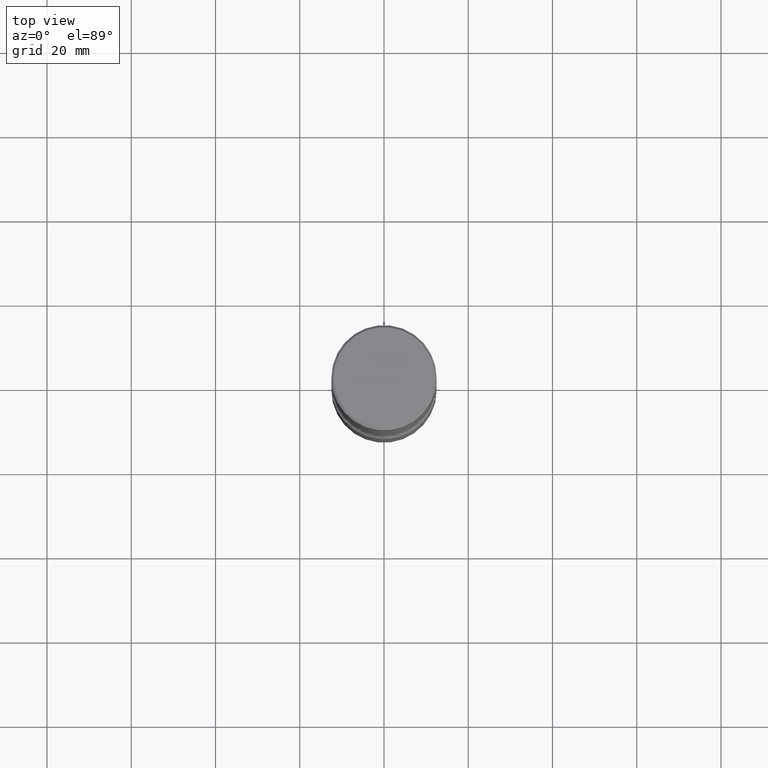
[diagram: clean part render]
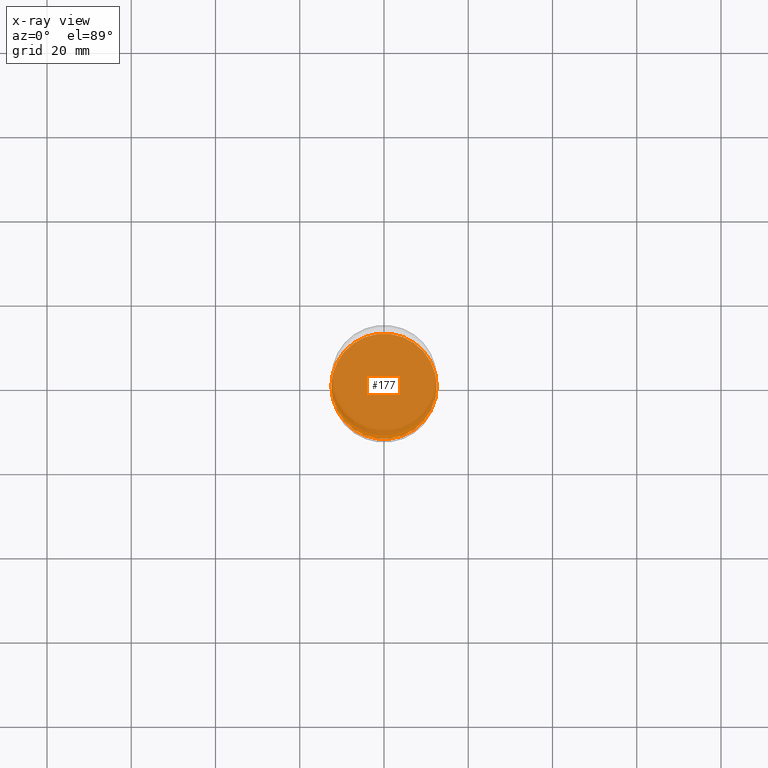
[diagram: x-ray — body ghosted, one internal face saturated and labeled with its STEP entity id]
A machine part, top view, then the same camera in x-ray: the body is ghosted and one INTERNAL B-rep face — a face not visible from any outside direction — is saturated and labeled: STEP entity #177.
In plain terms, the highlighted planar face has unit normal (0, -0, -1).
Its self-contained STEP definition (entity closure, byte-faithful):
#50 = DIRECTION ( 'NONE',  ( 2.438088387897960049E-29, -3.491481338843145188E-15, -1.000000000000000000 ) ) ;
#91 = DIRECTION ( 'NONE',  ( 1.000000000000000000, -6.982962677686270655E-15, 0.000000000000000000 ) ) ;
#161 = CARTESIAN_POINT ( 'NONE',  ( -0.4921500000000002539, -1.605675601601381657E-14, -4.606299999999999173 ) ) ;
#164 = DIRECTION ( 'NONE',  ( 1.000000000000000000, -6.982962677686270655E-15, 0.000000000000000000 ) ) ;
#177 = ADVANCED_FACE ( 'NONE', ( #191 ), #406, .F. ) ;
#187 = AXIS2_PLACEMENT_3D ( 'NONE', #445, #50, #360 ) ;
#191 = FACE_OUTER_BOUND ( 'NONE', #380, .T. ) ;
#202 = EDGE_CURVE ( 'NONE', #269, #552, #415, .T. ) ;
#240 = ORIENTED_EDGE ( 'NONE', *, *, #320, .T. ) ;
#269 = VERTEX_POINT ( 'NONE', #437 ) ;
#275 = CIRCLE ( 'NONE', #345, 0.4921500000000002539 ) ;
#303 = CARTESIAN_POINT ( 'NONE',  ( 1.126456296193059450E-28, -1.608281049111318039E-14, -4.606299999999999173 ) ) ;
#319 = CARTESIAN_POINT ( 'NONE',  ( 1.126456296193059450E-28, -1.608281049111318039E-14, -4.606299999999999173 ) ) ;
#320 = EDGE_CURVE ( 'NONE', #552, #269, #275, .T. ) ;
#345 = AXIS2_PLACEMENT_3D ( 'NONE', #319, #460, #164 ) ;
#360 = DIRECTION ( 'NONE',  ( -1.000000000000000000, 6.982962677686265922E-15, -4.876176775795935793E-29 ) ) ;
#380 = EDGE_LOOP ( 'NONE', ( #479, #240 ) ) ;
#406 = PLANE ( 'NONE',  #187 ) ;
#415 = CIRCLE ( 'NONE', #537, 0.4921500000000002539 ) ;
#437 = CARTESIAN_POINT ( 'NONE',  ( 0.4921500000000002539, -1.951947557293647774E-14, -4.606299999999999173 ) ) ;
#445 = CARTESIAN_POINT ( 'NONE',  ( 1.126456296193059450E-28, -1.608281049111318039E-14, -4.606299999999999173 ) ) ;
#460 = DIRECTION ( 'NONE',  ( -2.445468806185136597E-29, 3.491481338843145583E-15, 1.000000000000000000 ) ) ;
#479 = ORIENTED_EDGE ( 'NONE', *, *, #202, .T. ) ;
#480 = DIRECTION ( 'NONE',  ( -2.445468806185136597E-29, 3.491481338843145583E-15, 1.000000000000000000 ) ) ;
#537 = AXIS2_PLACEMENT_3D ( 'NONE', #303, #480, #91 ) ;
#552 = VERTEX_POINT ( 'NONE', #161 ) ;